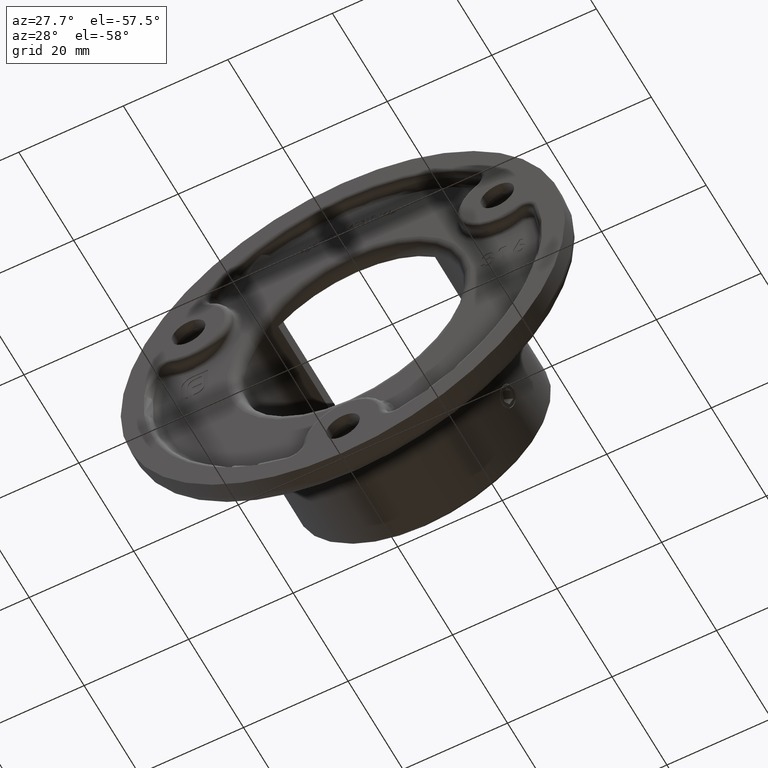
[diagram: clean part render]
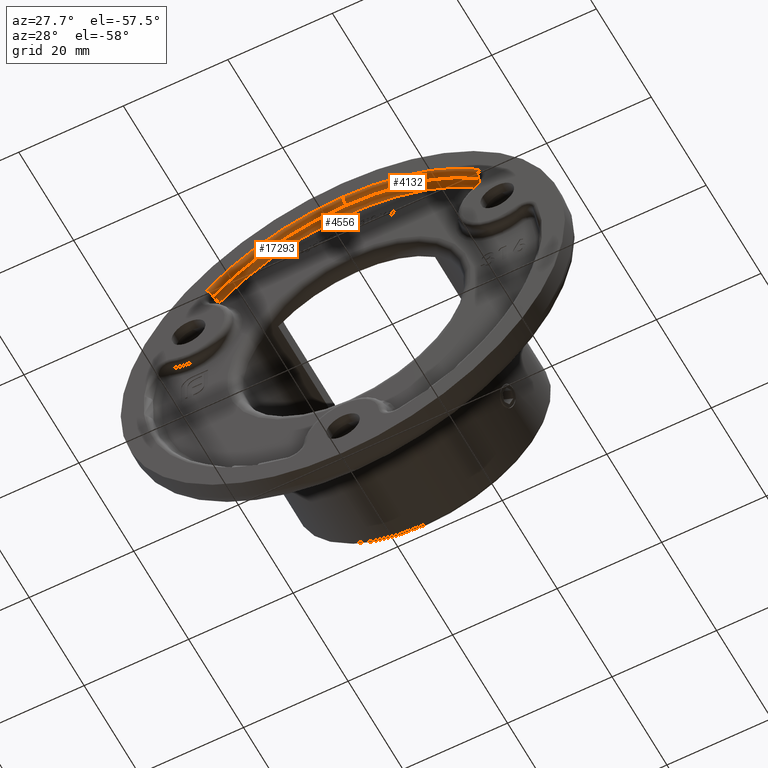
[diagram: same view with one multi-face feature highlighted, each face labeled with its STEP entity id]
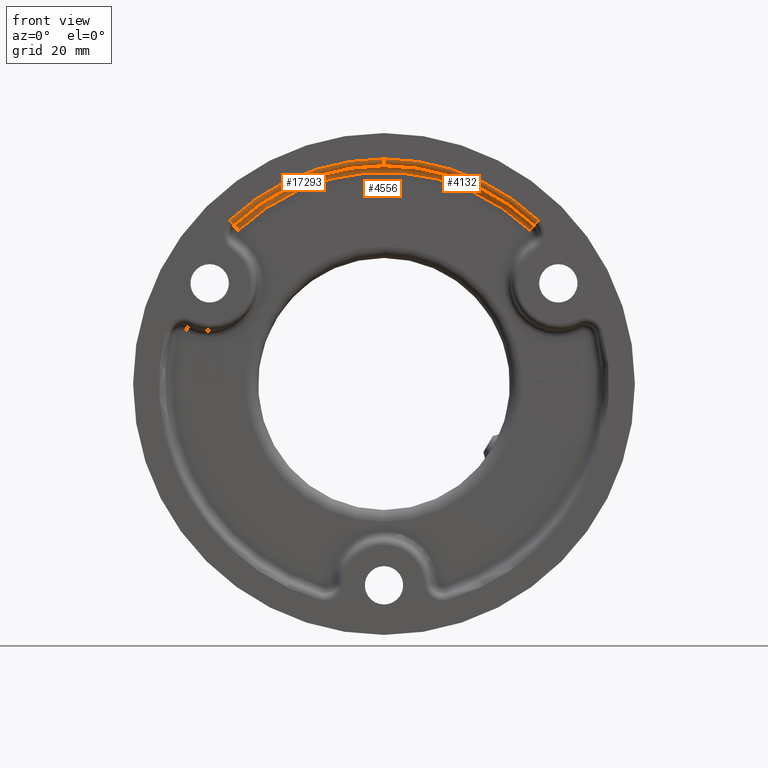
[diagram: same view with one multi-face feature highlighted, each face labeled with its STEP entity id]
A machine part, auxiliary view. The highlighted faces form ONE feature: a constant-radius fillet chain: 3 tangent blend faces with common blend radius 1.125 mm. The faces share edges in the B-rep.
A second angle (front view) of the same feature is appended — it is thin or edge-on in the first view.
Their STEP definitions:
[1] entity #4132 (Torus):
#1027 = CARTESIAN_POINT ( 'NONE',  ( 0.000000000000000000, 1.125000000000000222, 0.000000000000000000 ) ) ;
#1085 = CARTESIAN_POINT ( 'NONE',  ( 0.000000000000000000, 1.125000000000000222, 0.000000000000000000 ) ) ;
#1462 = VERTEX_POINT ( 'NONE', #18464 ) ;
#1603 = ORIENTED_EDGE ( 'NONE', *, *, #3145, .F. ) ;
#2434 = CARTESIAN_POINT ( 'NONE',  ( 0.000000000000000000, 0.000000000000000000, 38.12500000000002132 ) ) ;
#2508 = CARTESIAN_POINT ( 'NONE',  ( 26.20716058254527070, 1.125000000000000222, 27.68935461871018688 ) ) ;
#3145 = EDGE_CURVE ( 'NONE', #1462, #10418, #5487, .T. ) ;
#3315 = FACE_OUTER_BOUND ( 'NONE', #8677, .T. ) ;
#3396 = AXIS2_PLACEMENT_3D ( 'NONE', #1085, #15011, #13362 ) ;
#3744 = CARTESIAN_POINT ( 'NONE',  ( 0.000000000000000000, 1.125000000000000222, 37.00000000000002132 ) ) ;
#4132 = ADVANCED_FACE ( 'NONE', ( #3315 ), #18165, .T. ) ;
#4224 = VERTEX_POINT ( 'NONE', #2434 ) ;
#4259 = CARTESIAN_POINT ( 'NONE',  ( 0.000000000000000000, 0.000000000000000000, 0.000000000000000000 ) ) ;
#5487 = CIRCLE ( 'NONE', #6869, 37.00000000000002132 ) ;
#5551 = CARTESIAN_POINT ( 'NONE',  ( 26.20716058254527070, 0.000000000000000000, 27.68935461871018688 ) ) ;
#5809 = DIRECTION ( 'NONE',  ( 0.000000000000000000, 0.000000000000000000, 1.000000000000000000 ) ) ;
#5886 = DIRECTION ( 'NONE',  ( 0.000000000000000000, 0.000000000000000000, 1.000000000000000000 ) ) ;
#6773 = EDGE_CURVE ( 'NONE', #8112, #1462, #9807, .T. ) ;
#6830 = ORIENTED_EDGE ( 'NONE', *, *, #9480, .F. ) ;
#6869 = AXIS2_PLACEMENT_3D ( 'NONE', #1027, #13506, #12139 ) ;
#7296 = AXIS2_PLACEMENT_3D ( 'NONE', #2508, #12000, #12069 ) ;
#7378 = DIRECTION ( 'NONE',  ( -1.000000000000000000, 0.000000000000000000, 0.000000000000000000 ) ) ;
#7605 = ORIENTED_EDGE ( 'NONE', *, *, #6773, .F. ) ;
#7756 = ORIENTED_EDGE ( 'NONE', *, *, #13993, .F. ) ;
#8112 = VERTEX_POINT ( 'NONE', #5551 ) ;
#8677 = EDGE_LOOP ( 'NONE', ( #6830, #1603, #7605, #7756 ) ) ;
#9480 = EDGE_CURVE ( 'NONE', #10418, #4224, #11205, .T. ) ;
#9807 = CIRCLE ( 'NONE', #7296, 1.125000000000000666 ) ;
#10418 = VERTEX_POINT ( 'NONE', #3744 ) ;
#10578 = AXIS2_PLACEMENT_3D ( 'NONE', #15211, #7378, #5886 ) ;
#11205 = CIRCLE ( 'NONE', #10578, 1.125000000000000888 ) ;
#12000 = DIRECTION ( 'NONE',  ( 0.7262781539333810210, 0.000000000000000000, -0.6874009333126629429 ) ) ;
#12069 = DIRECTION ( 'NONE',  ( -0.6874009333126629429, 0.000000000000000000, -0.7262781539333810210 ) ) ;
#12139 = DIRECTION ( 'NONE',  ( 8.881784197001252323E-16, 0.000000000000000000, 1.000000000000000000 ) ) ;
#13362 = DIRECTION ( 'NONE',  ( 0.000000000000000000, 0.000000000000000000, 1.000000000000000000 ) ) ;
#13506 = DIRECTION ( 'NONE',  ( -0.000000000000000000, -1.000000000000000000, -0.000000000000000000 ) ) ;
#13993 = EDGE_CURVE ( 'NONE', #4224, #8112, #15756, .T. ) ;
#15011 = DIRECTION ( 'NONE',  ( 0.000000000000000000, 1.000000000000000000, 0.000000000000000000 ) ) ;
#15131 = DIRECTION ( 'NONE',  ( 0.000000000000000000, 1.000000000000000000, 0.000000000000000000 ) ) ;
#15211 = CARTESIAN_POINT ( 'NONE',  ( 0.000000000000000000, 1.125000000000000222, 38.12500000000002132 ) ) ;
#15756 = CIRCLE ( 'NONE', #17994, 38.12500000000002132 ) ;
#17994 = AXIS2_PLACEMENT_3D ( 'NONE', #4259, #15131, #5809 ) ;
#18165 = TOROIDAL_SURFACE ( 'NONE', #3396, 38.12500000000002132, 1.125000000000000222 ) ;
#18464 = CARTESIAN_POINT ( 'NONE',  ( 25.43383453256852178, 1.124999999999999778, 26.87229169553513231 ) ) ;
[2] entity #17293 (Torus):
#170 = FACE_OUTER_BOUND ( 'NONE', #2218, .T. ) ;
#283 = CARTESIAN_POINT ( 'NONE',  ( 0.000000000000000000, 1.125000000000000222, 0.000000000000000000 ) ) ;
#1942 = EDGE_CURVE ( 'NONE', #9318, #13841, #12326, .T. ) ;
#2218 = EDGE_LOOP ( 'NONE', ( #19750, #17585, #18079, #15382 ) ) ;
#2434 = CARTESIAN_POINT ( 'NONE',  ( 0.000000000000000000, 0.000000000000000000, 38.12500000000002132 ) ) ;
#3066 = CARTESIAN_POINT ( 'NONE',  ( -26.20716058254486924, 1.125000000000000222, 27.68935461871055992 ) ) ;
#3542 = DIRECTION ( 'NONE',  ( 0.000000000000000000, 0.000000000000000000, 1.000000000000000000 ) ) ;
#3744 = CARTESIAN_POINT ( 'NONE',  ( 0.000000000000000000, 1.125000000000000222, 37.00000000000002132 ) ) ;
#4224 = VERTEX_POINT ( 'NONE', #2434 ) ;
#5315 = EDGE_CURVE ( 'NONE', #9318, #4224, #19884, .T. ) ;
#5886 = DIRECTION ( 'NONE',  ( 0.000000000000000000, 0.000000000000000000, 1.000000000000000000 ) ) ;
#6754 = DIRECTION ( 'NONE',  ( 0.000000000000000000, 0.000000000000000000, 1.000000000000000000 ) ) ;
#7378 = DIRECTION ( 'NONE',  ( -1.000000000000000000, 0.000000000000000000, 0.000000000000000000 ) ) ;
#8042 = CARTESIAN_POINT ( 'NONE',  ( 0.000000000000000000, 1.125000000000000222, 0.000000000000000000 ) ) ;
#8244 = CARTESIAN_POINT ( 'NONE',  ( -25.43383453256813453, 1.124999999999999778, 26.87229169553549823 ) ) ;
#9318 = VERTEX_POINT ( 'NONE', #10162 ) ;
#9480 = EDGE_CURVE ( 'NONE', #10418, #4224, #11205, .T. ) ;
#9567 = CIRCLE ( 'NONE', #17639, 37.00000000000002132 ) ;
#10162 = CARTESIAN_POINT ( 'NONE',  ( -26.20716058254486924, 0.000000000000000000, 27.68935461871055992 ) ) ;
#10418 = VERTEX_POINT ( 'NONE', #3744 ) ;
#10578 = AXIS2_PLACEMENT_3D ( 'NONE', #15211, #7378, #5886 ) ;
#11182 = DIRECTION ( 'NONE',  ( -0.000000000000000000, -1.000000000000000000, -0.000000000000000000 ) ) ;
#11205 = CIRCLE ( 'NONE', #10578, 1.125000000000000888 ) ;
#11703 = AXIS2_PLACEMENT_3D ( 'NONE', #13457, #15103, #19759 ) ;
#12326 = CIRCLE ( 'NONE', #17462, 1.125000000000001110 ) ;
#12895 = DIRECTION ( 'NONE',  ( 0.000000000000000000, 1.000000000000000000, 0.000000000000000000 ) ) ;
#13457 = CARTESIAN_POINT ( 'NONE',  ( 0.000000000000000000, 0.000000000000000000, 0.000000000000000000 ) ) ;
#13841 = VERTEX_POINT ( 'NONE', #8244 ) ;
#15103 = DIRECTION ( 'NONE',  ( 0.000000000000000000, 1.000000000000000000, 0.000000000000000000 ) ) ;
#15211 = CARTESIAN_POINT ( 'NONE',  ( 0.000000000000000000, 1.125000000000000222, 38.12500000000002132 ) ) ;
#15382 = ORIENTED_EDGE ( 'NONE', *, *, #1942, .T. ) ;
#15426 = DIRECTION ( 'NONE',  ( 0.6874009333126533949, 0.000000000000000000, -0.7262781539333900138 ) ) ;
#16197 = TOROIDAL_SURFACE ( 'NONE', #18429, 38.12500000000002132, 1.125000000000000222 ) ;
#17130 = DIRECTION ( 'NONE',  ( 0.7262781539333900138, 0.000000000000000000, 0.6874009333126533949 ) ) ;
#17293 = ADVANCED_FACE ( 'NONE', ( #170 ), #16197, .T. ) ;
#17462 = AXIS2_PLACEMENT_3D ( 'NONE', #3066, #17130, #15426 ) ;
#17585 = ORIENTED_EDGE ( 'NONE', *, *, #9480, .T. ) ;
#17639 = AXIS2_PLACEMENT_3D ( 'NONE', #8042, #11182, #6754 ) ;
#18079 = ORIENTED_EDGE ( 'NONE', *, *, #5315, .F. ) ;
#18429 = AXIS2_PLACEMENT_3D ( 'NONE', #283, #12895, #3542 ) ;
#19076 = EDGE_CURVE ( 'NONE', #10418, #13841, #9567, .T. ) ;
#19750 = ORIENTED_EDGE ( 'NONE', *, *, #19076, .F. ) ;
#19759 = DIRECTION ( 'NONE',  ( 0.000000000000000000, 0.000000000000000000, 1.000000000000000000 ) ) ;
#19884 = CIRCLE ( 'NONE', #11703, 38.12500000000002132 ) ;
[3] entity #4556 (Torus):
#298 = AXIS2_PLACEMENT_3D ( 'NONE', #3998, #2578, #18167 ) ;
#749 = CARTESIAN_POINT ( 'NONE',  ( -24.66050848259139983, 2.250000000000000000, 26.05522877236043300 ) ) ;
#1027 = CARTESIAN_POINT ( 'NONE',  ( 0.000000000000000000, 1.125000000000000222, 0.000000000000000000 ) ) ;
#1462 = VERTEX_POINT ( 'NONE', #18464 ) ;
#2071 = DIRECTION ( 'NONE',  ( 0.000000000000000000, -1.000000000000000000, 0.000000000000000000 ) ) ;
#2125 = VERTEX_POINT ( 'NONE', #3265 ) ;
#2578 = DIRECTION ( 'NONE',  ( -0.7262781539333900138, 0.000000000000000000, -0.6874009333126533949 ) ) ;
#3145 = EDGE_CURVE ( 'NONE', #1462, #10418, #5487, .T. ) ;
#3265 = CARTESIAN_POINT ( 'NONE',  ( 24.66050848259177641, 2.250000000000000000, 26.05522877236007773 ) ) ;
#3277 = AXIS2_PLACEMENT_3D ( 'NONE', #5129, #2071, #6678 ) ;
#3744 = CARTESIAN_POINT ( 'NONE',  ( 0.000000000000000000, 1.125000000000000222, 37.00000000000002132 ) ) ;
#3998 = CARTESIAN_POINT ( 'NONE',  ( -24.66050848259139983, 1.124999999999999778, 26.05522877236043300 ) ) ;
#4037 = TOROIDAL_SURFACE ( 'NONE', #3277, 35.87500000000002132, 1.125000000000000222 ) ;
#4556 = ADVANCED_FACE ( 'NONE', ( #6187 ), #4037, .F. ) ;
#5129 = CARTESIAN_POINT ( 'NONE',  ( 0.000000000000000000, 1.124999999999999778, 0.000000000000000000 ) ) ;
#5487 = CIRCLE ( 'NONE', #6869, 37.00000000000002132 ) ;
#5712 = DIRECTION ( 'NONE',  ( 0.000000000000000000, -1.000000000000000000, 0.000000000000000000 ) ) ;
#5874 = ORIENTED_EDGE ( 'NONE', *, *, #17625, .T. ) ;
#6187 = FACE_OUTER_BOUND ( 'NONE', #15161, .T. ) ;
#6678 = DIRECTION ( 'NONE',  ( 0.000000000000000000, 0.000000000000000000, -1.000000000000000000 ) ) ;
#6754 = DIRECTION ( 'NONE',  ( 0.000000000000000000, 0.000000000000000000, 1.000000000000000000 ) ) ;
#6869 = AXIS2_PLACEMENT_3D ( 'NONE', #1027, #13506, #12139 ) ;
#7316 = CARTESIAN_POINT ( 'NONE',  ( 24.66050848259177641, 1.124999999999999778, 26.05522877236007773 ) ) ;
#7404 = DIRECTION ( 'NONE',  ( 0.000000000000000000, 0.000000000000000000, -1.000000000000000000 ) ) ;
#7693 = AXIS2_PLACEMENT_3D ( 'NONE', #14971, #5712, #7404 ) ;
#8042 = CARTESIAN_POINT ( 'NONE',  ( 0.000000000000000000, 1.125000000000000222, 0.000000000000000000 ) ) ;
#8244 = CARTESIAN_POINT ( 'NONE',  ( -25.43383453256813453, 1.124999999999999778, 26.87229169553549823 ) ) ;
#9567 = CIRCLE ( 'NONE', #17639, 37.00000000000002132 ) ;
#9657 = CIRCLE ( 'NONE', #10666, 1.125000000000000666 ) ;
#10418 = VERTEX_POINT ( 'NONE', #3744 ) ;
#10649 = DIRECTION ( 'NONE',  ( -0.7262781539333810210, 0.000000000000000000, 0.6874009333126629429 ) ) ;
#10666 = AXIS2_PLACEMENT_3D ( 'NONE', #7316, #10649, #13788 ) ;
#11182 = DIRECTION ( 'NONE',  ( -0.000000000000000000, -1.000000000000000000, -0.000000000000000000 ) ) ;
#11641 = ORIENTED_EDGE ( 'NONE', *, *, #14434, .F. ) ;
#12139 = DIRECTION ( 'NONE',  ( 8.881784197001252323E-16, 0.000000000000000000, 1.000000000000000000 ) ) ;
#12526 = CIRCLE ( 'NONE', #298, 1.125000000000001110 ) ;
#13506 = DIRECTION ( 'NONE',  ( -0.000000000000000000, -1.000000000000000000, -0.000000000000000000 ) ) ;
#13543 = EDGE_CURVE ( 'NONE', #1462, #2125, #9657, .T. ) ;
#13788 = DIRECTION ( 'NONE',  ( 0.6874009333126629429, 0.000000000000000000, 0.7262781539333810210 ) ) ;
#13841 = VERTEX_POINT ( 'NONE', #8244 ) ;
#14062 = ORIENTED_EDGE ( 'NONE', *, *, #13543, .F. ) ;
#14121 = ORIENTED_EDGE ( 'NONE', *, *, #19076, .T. ) ;
#14434 = EDGE_CURVE ( 'NONE', #2125, #17587, #17556, .T. ) ;
#14971 = CARTESIAN_POINT ( 'NONE',  ( 0.000000000000000000, 2.250000000000000000, 0.000000000000000000 ) ) ;
#15161 = EDGE_LOOP ( 'NONE', ( #5874, #11641, #14062, #19640, #14121 ) ) ;
#17556 = CIRCLE ( 'NONE', #7693, 35.87500000000002132 ) ;
#17587 = VERTEX_POINT ( 'NONE', #749 ) ;
#17625 = EDGE_CURVE ( 'NONE', #13841, #17587, #12526, .T. ) ;
#17639 = AXIS2_PLACEMENT_3D ( 'NONE', #8042, #11182, #6754 ) ;
#18167 = DIRECTION ( 'NONE',  ( -0.6874009333126533949, 0.000000000000000000, 0.7262781539333900138 ) ) ;
#18464 = CARTESIAN_POINT ( 'NONE',  ( 25.43383453256852178, 1.124999999999999778, 26.87229169553513231 ) ) ;
#19076 = EDGE_CURVE ( 'NONE', #10418, #13841, #9567, .T. ) ;
#19640 = ORIENTED_EDGE ( 'NONE', *, *, #3145, .T. ) ;